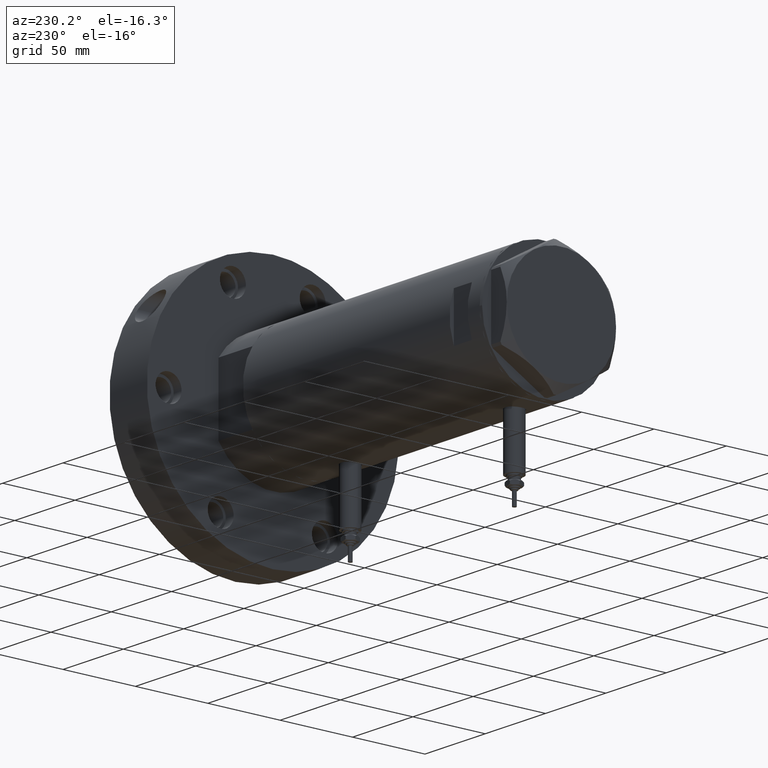
[diagram: clean part render]
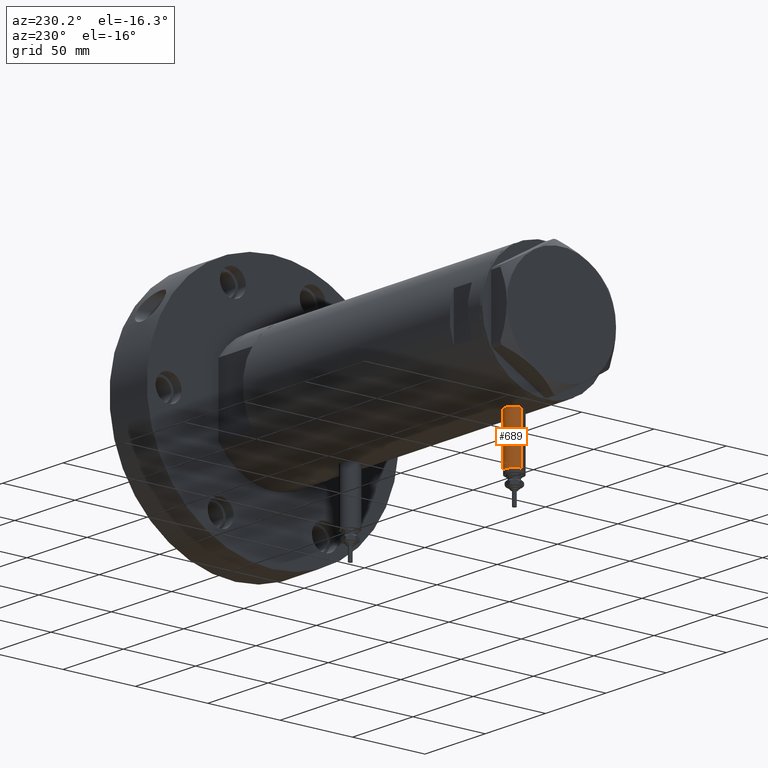
[diagram: same view with one face highlighted and labeled with its STEP entity id]
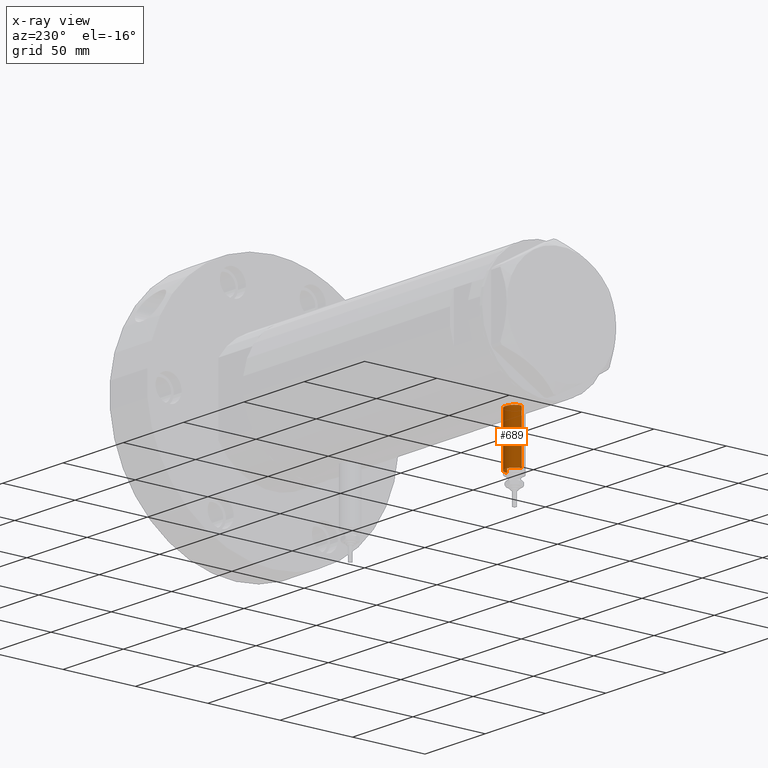
[diagram: x-ray of the same camera — body ghosted, the highlighted face saturated]
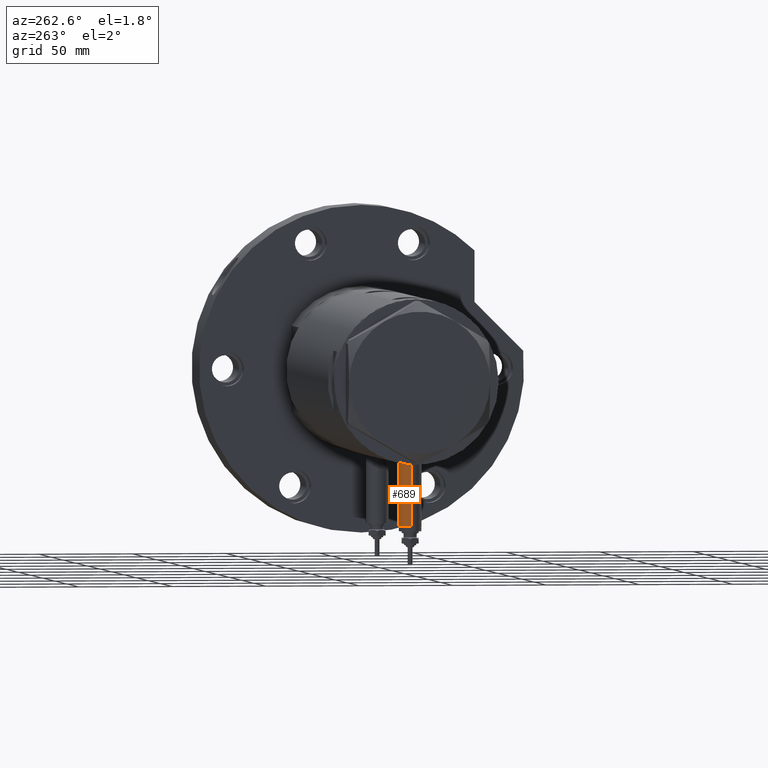
[diagram: same view with one face highlighted and labeled with its STEP entity id]
A machine part, auxiliary view. The second image highlights one B-rep face of the part: STEP entity #689.
The next image is the same camera in x-ray: the body ghosted, the highlighted face saturated — about 0% of this face is hidden behind the body in this view.
A second angle (auxiliary view) of the same face is appended — the face is thin or edge-on in the first view.
In plain terms, the highlighted cylindrical surface (edge-blend (fillet) strip) has radius 6 mm, axis along (0, 0, 1).
Its self-contained STEP definition (entity closure, byte-faithful):
#161 = DIRECTION ( 'NONE',  ( 1.000000000000000000, -0.000000000000000000, -0.000000000000000000 ) ) ;
#251 = VERTEX_POINT ( 'NONE', #3744 ) ;
#401 = CARTESIAN_POINT ( 'NONE',  ( -77.50000000000000000, 7.347880794884104945E-16, 80.20000000000000284 ) ) ;
#689 = ADVANCED_FACE ( 'NONE', ( #5434 ), #1832, .T. ) ;
#756 = CARTESIAN_POINT ( 'NONE',  ( -77.50000000000000000, 7.347880794884101001E-16, 80.20000000000000284 ) ) ;
#881 = CARTESIAN_POINT ( 'NONE',  ( -42.79999999999999716, 7.347880794884101001E-16, 80.20000000000000284 ) ) ;
#1002 = AXIS2_PLACEMENT_3D ( 'NONE', #3357, #5077, #4431 ) ;
#1075 = ORIENTED_EDGE ( 'NONE', *, *, #2129, .T. ) ;
#1079 = DIRECTION ( 'NONE',  ( 1.000000000000000000, -0.000000000000000000, -0.000000000000000000 ) ) ;
#1429 = VERTEX_POINT ( 'NONE', #756 ) ;
#1816 = DIRECTION ( 'NONE',  ( 0.000000000000000000, 0.000000000000000000, 1.000000000000000000 ) ) ;
#1832 = CYLINDRICAL_SURFACE ( 'NONE', #7330, 5.999999999999991118 ) ;
#1910 = DIRECTION ( 'NONE',  ( 0.000000000000000000, 0.000000000000000000, -1.000000000000000000 ) ) ;
#2068 = VERTEX_POINT ( 'NONE', #881 ) ;
#2129 = EDGE_CURVE ( 'NONE', #2068, #251, #3071, .T. ) ;
#2537 = CARTESIAN_POINT ( 'NONE',  ( -77.50000000000000000, 0.000000000000000000, 74.20000000000001705 ) ) ;
#2841 = VECTOR ( 'NONE', #1079, 1000.000000000000000 ) ;
#2861 = AXIS2_PLACEMENT_3D ( 'NONE', #2537, #7056, #1816 ) ;
#2878 = EDGE_CURVE ( 'NONE', #1429, #2068, #5622, .T. ) ;
#3071 = CIRCLE ( 'NONE', #1002, 5.999999999999991118 ) ;
#3134 = LINE ( 'NONE', #3587, #3331 ) ;
#3331 = VECTOR ( 'NONE', #7072, 1000.000000000000000 ) ;
#3357 = CARTESIAN_POINT ( 'NONE',  ( -42.79999999999999716, 0.000000000000000000, 74.20000000000001705 ) ) ;
#3585 = ORIENTED_EDGE ( 'NONE', *, *, #2878, .T. ) ;
#3587 = CARTESIAN_POINT ( 'NONE',  ( -77.50000000000000000, 0.000000000000000000, 68.20000000000003126 ) ) ;
#3744 = CARTESIAN_POINT ( 'NONE',  ( -42.79999999999999716, 0.000000000000000000, 68.20000000000003126 ) ) ;
#3854 = EDGE_CURVE ( 'NONE', #5256, #251, #3134, .T. ) ;
#4208 = CIRCLE ( 'NONE', #2861, 5.999999999999991118 ) ;
#4262 = ORIENTED_EDGE ( 'NONE', *, *, #4940, .F. ) ;
#4431 = DIRECTION ( 'NONE',  ( 0.000000000000000000, 0.000000000000000000, 1.000000000000000000 ) ) ;
#4940 = EDGE_CURVE ( 'NONE', #1429, #5256, #4208, .T. ) ;
#5077 = DIRECTION ( 'NONE',  ( -1.000000000000000000, 0.000000000000000000, 0.000000000000000000 ) ) ;
#5175 = CARTESIAN_POINT ( 'NONE',  ( -77.50000000000000000, 0.000000000000000000, 68.20000000000003126 ) ) ;
#5256 = VERTEX_POINT ( 'NONE', #5175 ) ;
#5349 = CARTESIAN_POINT ( 'NONE',  ( -77.50000000000000000, 0.000000000000000000, 74.20000000000001705 ) ) ;
#5434 = FACE_OUTER_BOUND ( 'NONE', #6597, .T. ) ;
#5451 = ORIENTED_EDGE ( 'NONE', *, *, #3854, .F. ) ;
#5622 = LINE ( 'NONE', #401, #2841 ) ;
#6597 = EDGE_LOOP ( 'NONE', ( #4262, #3585, #1075, #5451 ) ) ;
#7056 = DIRECTION ( 'NONE',  ( -1.000000000000000000, 0.000000000000000000, 0.000000000000000000 ) ) ;
#7072 = DIRECTION ( 'NONE',  ( 1.000000000000000000, -0.000000000000000000, -0.000000000000000000 ) ) ;
#7330 = AXIS2_PLACEMENT_3D ( 'NONE', #5349, #161, #1910 ) ;